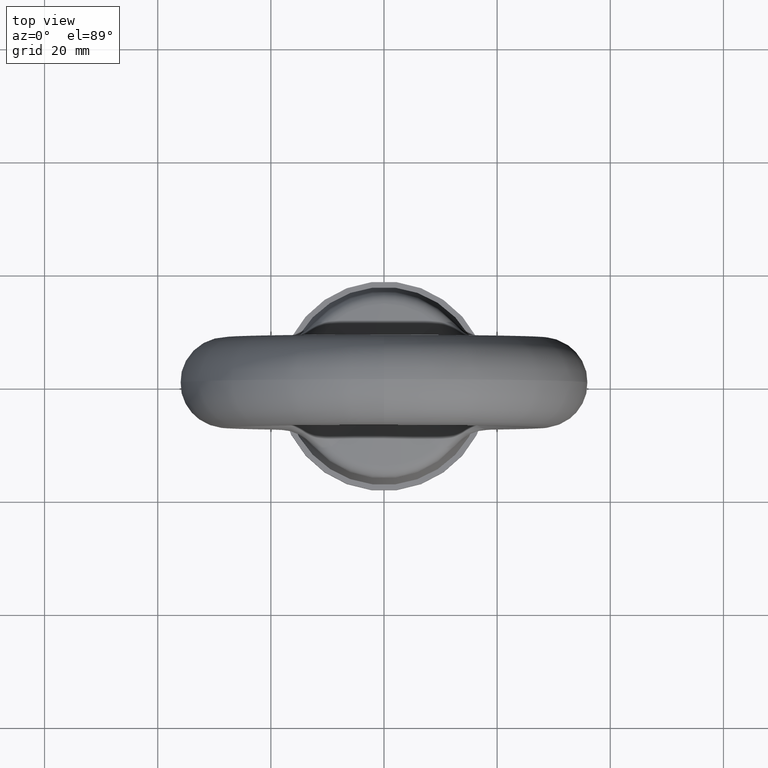
[diagram: clean part render]
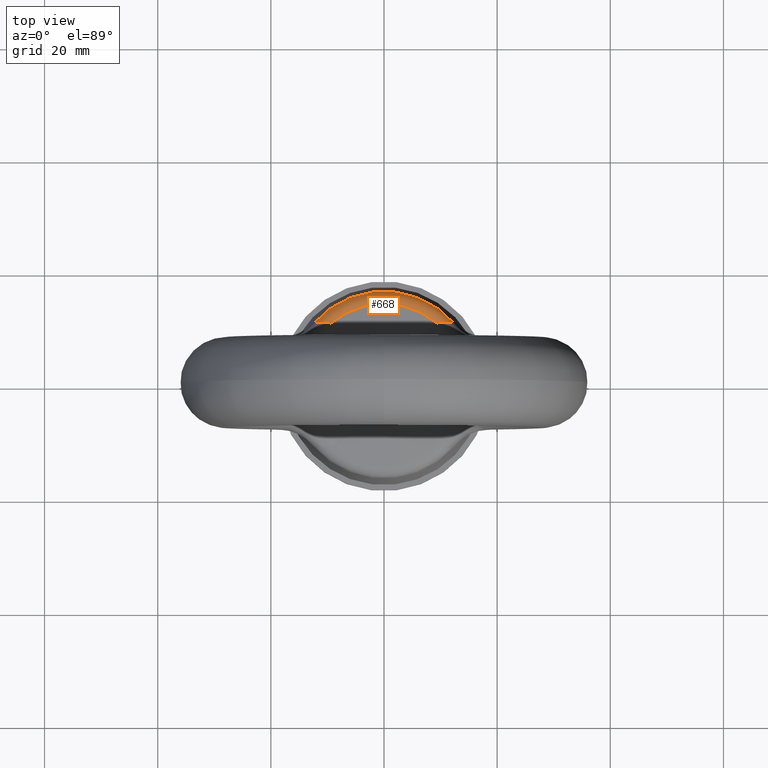
[diagram: same view with one face highlighted and labeled with its STEP entity id]
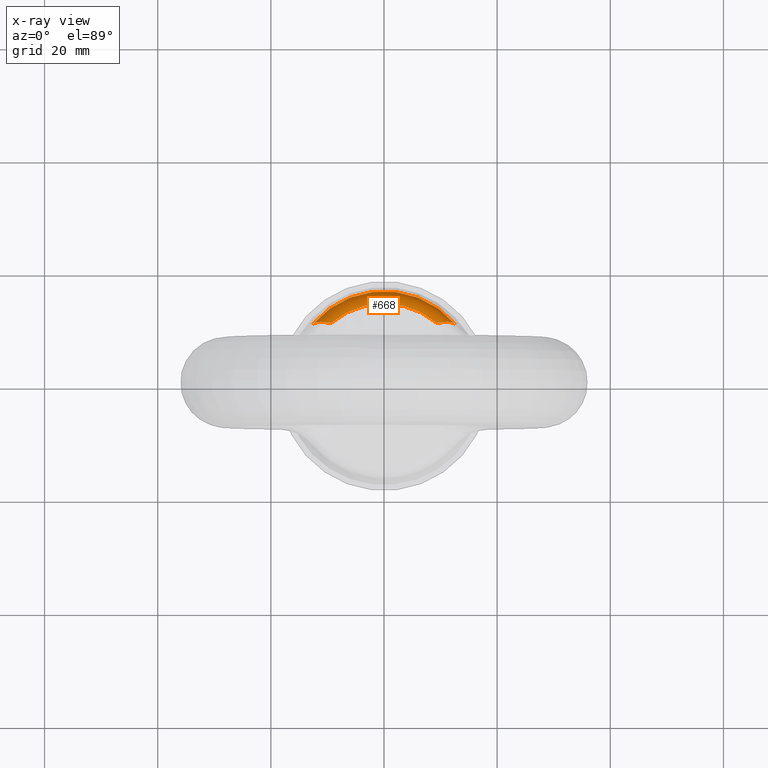
[diagram: x-ray of the same camera — body ghosted, the highlighted face saturated]
A machine part, top view. The second image highlights one B-rep face of the part: STEP entity #668.
The next image is the same camera in x-ray: the body ghosted, the highlighted face saturated — about 0% of this face is hidden behind the body in this view.
In plain terms, the highlighted toroidal blend (fillet) surface has major radius 14.0487 mm and minor (blend) radius 2.5 mm.
Its self-contained STEP definition (entity closure, byte-faithful):
#558 = EDGE_CURVE ( 'NONE', #559, #560, #3228, .T. ) ;
#559 = VERTEX_POINT ( 'NONE', #3140 ) ;
#560 = VERTEX_POINT ( 'NONE', #3139 ) ;
#606 = EDGE_CURVE ( 'NONE', #730, #731, #3079, .T. ) ;
#668 = ADVANCED_FACE ( 'NONE', ( #3454 ), #3353, .T. ) ;
#669 = EDGE_LOOP ( 'NONE', ( #670, #689, #691, #692 ) ) ;
#670 = ORIENTED_EDGE ( 'NONE', *, *, #558, .F. ) ;
#689 = ORIENTED_EDGE ( 'NONE', *, *, #690, .T. ) ;
#690 = EDGE_CURVE ( 'NONE', #559, #731, #3405, .T. ) ;
#691 = ORIENTED_EDGE ( 'NONE', *, *, #606, .F. ) ;
#692 = ORIENTED_EDGE ( 'NONE', *, *, #693, .T. ) ;
#693 = EDGE_CURVE ( 'NONE', #730, #560, #3402, .T. ) ;
#730 = VERTEX_POINT ( 'NONE', #5185 ) ;
#731 = VERTEX_POINT ( 'NONE', #5179 ) ;
#3079 = CIRCLE ( 'NONE', #3284, 14.35201399865078100 ) ;
#3139 = CARTESIAN_POINT ( 'NONE',  ( 12.59169446655146100, 10.72351895779110000, -24.01787882337350100 ) ) ;
#3140 = CARTESIAN_POINT ( 'NONE',  ( -12.59169446655148100, 10.72351895779110000, -24.01787882337350100 ) ) ;
#3141 = DIRECTION ( 'NONE',  ( 1.000000000000000000, -1.776356839400250500E-015, 0.0000000000000000000 ) ) ;
#3225 = DIRECTION ( 'NONE',  ( 0.0000000000000000000, 0.0000000000000000000, -1.000000000000000000 ) ) ;
#3226 = CARTESIAN_POINT ( 'NONE',  ( 0.0000000000000000000, 0.0000000000000000000, -24.01787882337350100 ) ) ;
#3227 = AXIS2_PLACEMENT_3D ( 'NONE', #3226, #3225, #3141 ) ;
#3228 = CIRCLE ( 'NONE', #3227, 16.53918463459089900 ) ;
#3281 = DIRECTION ( 'NONE',  ( 1.000000000000000000, 0.0000000000000000000, 0.0000000000000000000 ) ) ;
#3282 = DIRECTION ( 'NONE',  ( 0.0000000000000000000, 0.0000000000000000000, 1.000000000000000000 ) ) ;
#3283 = CARTESIAN_POINT ( 'NONE',  ( 0.0000000000000000000, 0.0000000000000000000, -21.75423747734874900 ) ) ;
#3284 = AXIS2_PLACEMENT_3D ( 'NONE', #3283, #3282, #3281 ) ;
#3349 = DIRECTION ( 'NONE',  ( 1.000000000000000000, 0.0000000000000000000, 0.0000000000000000000 ) ) ;
#3350 = DIRECTION ( 'NONE',  ( 0.0000000000000000000, 0.0000000000000000000, 1.000000000000000000 ) ) ;
#3351 = CARTESIAN_POINT ( 'NONE',  ( 0.0000000000000000000, 0.0000000000000000000, -24.23576913919404800 ) ) ;
#3352 = AXIS2_PLACEMENT_3D ( 'NONE', #3351, #3350, #3349 ) ;
#3353 = TOROIDAL_SURFACE ( 'NONE', #3352, 14.04869797325909900, 2.500000000000000000 ) ;
#3380 = CARTESIAN_POINT ( 'NONE',  ( 11.11679881356194800, 11.12172245347203500, -22.37508491547859500 ) ) ;
#3381 = CARTESIAN_POINT ( 'NONE',  ( 10.96929206179846600, 11.11219539140142100, -22.28104296053273000 ) ) ;
#3382 = CARTESIAN_POINT ( 'NONE',  ( 10.66430183420101400, 11.07864648399728400, -22.11290977527940200 ) ) ;
#3383 = CARTESIAN_POINT ( 'NONE',  ( 10.50598359352674600, 11.05432417642308500, -22.03855167553278000 ) ) ;
#3384 = CARTESIAN_POINT ( 'NONE',  ( 10.01766801153619600, 10.97387716103813600, -21.85247189192953600 ) ) ;
#3385 = CARTESIAN_POINT ( 'NONE',  ( 9.680457130844498400, 10.91315840435754400, -21.78278086700369400 ) ) ;
#3386 = CARTESIAN_POINT ( 'NONE',  ( 9.327060884735228500, 10.90808145687910100, -21.75423747734874900 ) ) ;
#3388 = CARTESIAN_POINT ( 'NONE',  ( -9.327060884735228500, 10.90808145687910100, -21.75423747734874900 ) ) ;
#3389 = CARTESIAN_POINT ( 'NONE',  ( -9.680569315136029500, 10.91316001601516700, -21.78278992799397400 ) ) ;
#3390 = CARTESIAN_POINT ( 'NONE',  ( -10.01746268301718600, 10.97383357565756300, -21.85249225426768400 ) ) ;
#3391 = CARTESIAN_POINT ( 'NONE',  ( -10.50478887689816400, 11.05413221403252200, -22.03804730505632700 ) ) ;
#3392 = CARTESIAN_POINT ( 'NONE',  ( -10.66370810738989100, 11.07856546215571400, -22.11261334473530100 ) ) ;
#3393 = CARTESIAN_POINT ( 'NONE',  ( -10.96878902157252100, 11.11215571254187800, -22.28073488271627800 ) ) ;
#3394 = CARTESIAN_POINT ( 'NONE',  ( -11.11613465022007800, 11.12167878325730500, -22.37466395257453300 ) ) ;
#3395 = CARTESIAN_POINT ( 'NONE',  ( -11.40167131696384600, 11.12258099610938800, -22.58066688917920600 ) ) ;
#3396 = CARTESIAN_POINT ( 'NONE',  ( -11.53890073815234800, 11.11389870433182200, -22.69222527497035500 ) ) ;
#3397 = CARTESIAN_POINT ( 'NONE',  ( -11.79675096082784300, 11.07879101151742400, -22.92632078007526200 ) ) ;
#3398 = CARTESIAN_POINT ( 'NONE',  ( -11.91836303588528300, 11.05241950610056800, -23.04954727521998200 ) ) ;
#3399 = CARTESIAN_POINT ( 'NONE',  ( -12.26022784243222900, 10.94796758249354900, -23.43904641527347400 ) ) ;
#3400 = CARTESIAN_POINT ( 'NONE',  ( -12.45253586418608900, 10.84622303681195600, -23.71627286848922000 ) ) ;
#3401 = CARTESIAN_POINT ( 'NONE',  ( -12.59169446655148100, 10.72351895779110000, -24.01787882337350100 ) ) ;
#3402 = B_SPLINE_CURVE_WITH_KNOTS ( 'NONE', 3,
 ( #3386, #3385, #3384, #3383, #3382, #3381, #3380, #3525, #3524, #3523, #3522, #3521 ),
 .UNSPECIFIED., .F., .F.,
 ( 4, 2, 2, 2, 2, 4 ),
 ( 0.0000000000000000000, 0.001046947048625720500, 0.001570420572938579300, 0.002093894097251438000, 0.003140841145877155500, 0.004187788194502873500 ),
 .UNSPECIFIED. ) ;
#3405 = B_SPLINE_CURVE_WITH_KNOTS ( 'NONE', 3,
 ( #3401, #3400, #3399, #3398, #3397, #3396, #3395, #3394, #3393, #3392, #3391, #3390, #3389, #3388 ),
 .UNSPECIFIED., .F., .F.,
 ( 4, 2, 2, 2, 2, 2, 4 ),
 ( 1.717288626685379000E-017, 0.001050209629504955400, 0.001575314444257422500, 0.002100419259009890000, 0.002625524073762357500, 0.003150628888514824200, 0.004200838518019763500 ),
 .UNSPECIFIED. ) ;
#3454 = FACE_OUTER_BOUND ( 'NONE', #669, .T. ) ;
#3521 = CARTESIAN_POINT ( 'NONE',  ( 12.59169446655146100, 10.72351895779110000, -24.01787882337350100 ) ) ;
#3522 = CARTESIAN_POINT ( 'NONE',  ( 12.45251996376457800, 10.84623705712075100, -23.71623840664690900 ) ) ;
#3523 = CARTESIAN_POINT ( 'NONE',  ( 12.26126325726120900, 10.94756861095550900, -23.44034463010785500 ) ) ;
#3524 = CARTESIAN_POINT ( 'NONE',  ( 11.80467239246012700, 11.08723844376207700, -22.91989715442790000 ) ) ;
#3525 = CARTESIAN_POINT ( 'NONE',  ( 11.54610176687041800, 11.12295377520366900, -22.68498452344284600 ) ) ;
#5179 = CARTESIAN_POINT ( 'NONE',  ( -9.327060884735228500, 10.90808145687910100, -21.75423747734874900 ) ) ;
#5185 = CARTESIAN_POINT ( 'NONE',  ( 9.327060884735228500, 10.90808145687910100, -21.75423747734874900 ) ) ;